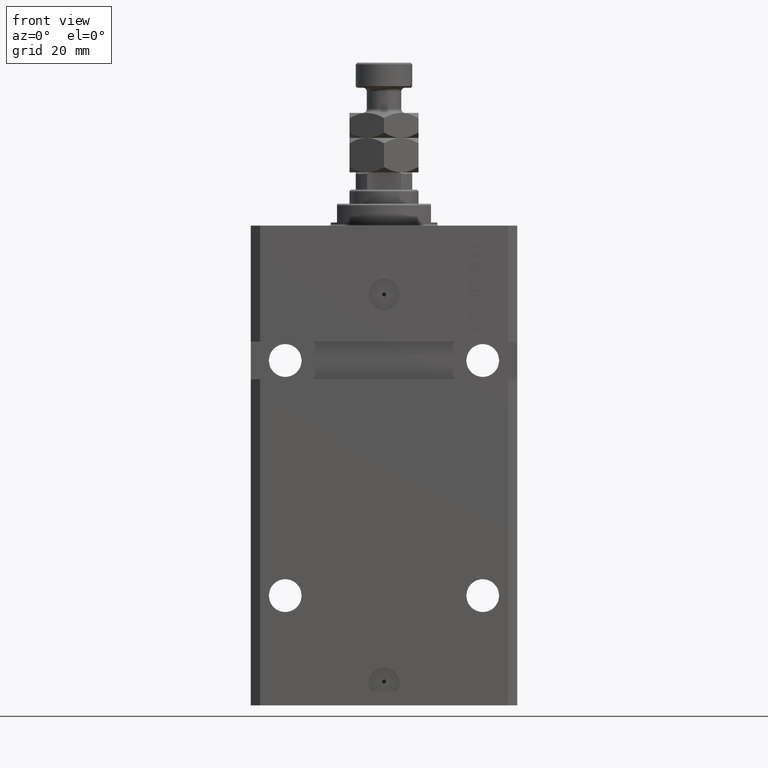
[diagram: clean part render]
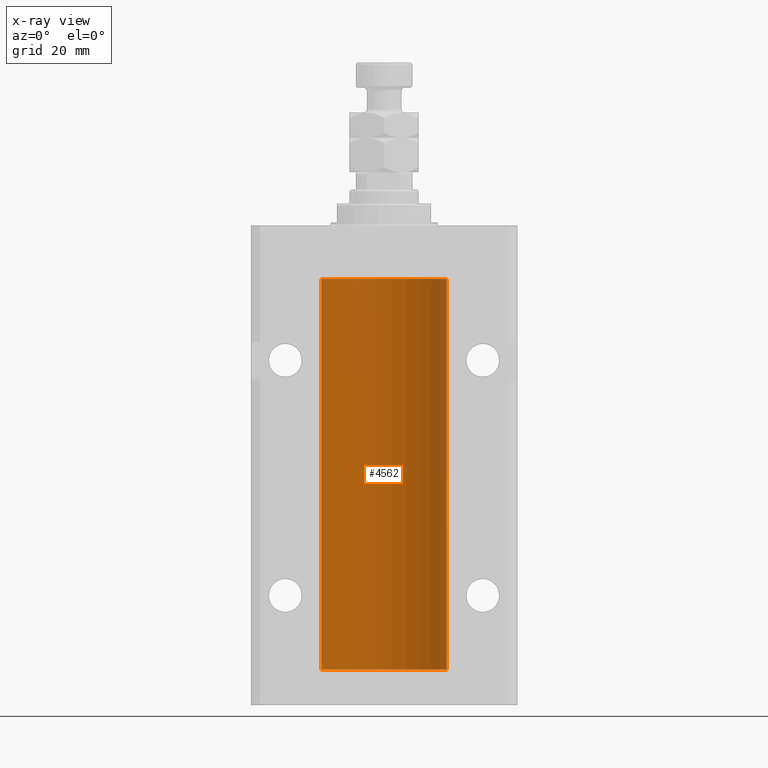
[diagram: x-ray — body ghosted, one internal face saturated and labeled with its STEP entity id]
A machine part, front view, then the same camera in x-ray: the body is ghosted and one INTERNAL B-rep face — a face not visible from any outside direction — is saturated and labeled: STEP entity #4562.
In plain terms, the highlighted cylindrical surface (partial cylindrical patch) has radius 20 mm, axis along (0, 0, 1).
Its self-contained STEP definition (entity closure, byte-faithful):
#610 = LINE ( 'NONE', #46173, #28416 ) ;
#773 = CARTESIAN_POINT ( 'NONE',  ( -20.00000000000000000, 0.1631688615953320320, -24.62499999999985434 ) ) ;
#874 = ORIENTED_EDGE ( 'NONE', *, *, #8172, .F. ) ;
#1271 = B_SPLINE_CURVE_WITH_KNOTS ( 'NONE', 3,
 ( #34008, #3576, #34253, #30234, #49593, #15134, #45831, #43064, #27208, #30994, #773, #46340 ),
 .UNSPECIFIED., .F., .F.,
 ( 4, 2, 2, 2, 2, 4 ),
 ( 5.848927291235706941E-19, 0.0002442693137305304075, 0.0004885386274610601645, 0.0009770772549221123059, 0.001465615882383164339, 0.001954154509844215938 ),
 .UNSPECIFIED. ) ;
#1500 = DIRECTION ( 'NONE',  ( -0.000000000000000000, -0.000000000000000000, 1.000000000000000000 ) ) ;
#2131 = VERTEX_POINT ( 'NONE', #33796 ) ;
#2314 = CARTESIAN_POINT ( 'NONE',  ( -20.00000000000000000, -1.756252550797319649E-14, -138.3749999999999716 ) ) ;
#3067 = CARTESIAN_POINT ( 'NONE',  ( -19.99253506710755346, 0.5587120480776690545, -139.3251162083025463 ) ) ;
#3576 = CARTESIAN_POINT ( 'NONE',  ( -19.99999999999999645, 0.08259581631026780002, -23.37500000000000000 ) ) ;
#4562 = ADVANCED_FACE ( 'NONE', ( #10789 ), #48522, .F. ) ;
#4648 = DIRECTION ( 'NONE',  ( -0.000000000000000000, -0.000000000000000000, 1.000000000000000000 ) ) ;
#5049 = LINE ( 'NONE', #35733, #36985 ) ;
#5670 = DIRECTION ( 'NONE',  ( 1.000000000000000000, 0.000000000000000000, 0.000000000000000000 ) ) ;
#5791 = ORIENTED_EDGE ( 'NONE', *, *, #15036, .T. ) ;
#6023 = DIRECTION ( 'NONE',  ( -0.000000000000000000, -0.000000000000000000, 1.000000000000000000 ) ) ;
#6099 = CARTESIAN_POINT ( 'NONE',  ( -19.99256581701871482, 0.5573276956901845880, -138.6734856577095059 ) ) ;
#8172 = EDGE_CURVE ( 'NONE', #40919, #8828, #45728, .T. ) ;
#8828 = VERTEX_POINT ( 'NONE', #17488 ) ;
#10284 = DIRECTION ( 'NONE',  ( 1.000000000000000000, 0.000000000000000000, 0.000000000000000000 ) ) ;
#10668 = EDGE_CURVE ( 'NONE', #35092, #47302, #610, .T. ) ;
#10789 = FACE_OUTER_BOUND ( 'NONE', #46677, .T. ) ;
#11881 = CARTESIAN_POINT ( 'NONE',  ( -20.00000000000000000, -2.867584836844214272E-15, -23.37500000000000000 ) ) ;
#13207 = EDGE_CURVE ( 'NONE', #30841, #44009, #30139, .T. ) ;
#13597 = CARTESIAN_POINT ( 'NONE',  ( -20.00000000000000000, 2.449293598294706513E-15, -141.5999999999999943 ) ) ;
#14252 = ORIENTED_EDGE ( 'NONE', *, *, #26614, .F. ) ;
#15036 = EDGE_CURVE ( 'NONE', #40919, #47302, #1271, .T. ) ;
#15134 = CARTESIAN_POINT ( 'NONE',  ( -19.99256581701871482, 0.5573276956902001311, -23.67348565770948809 ) ) ;
#17488 = CARTESIAN_POINT ( 'NONE',  ( -20.00000000000000000, 2.449293598294706513E-15, -17.00000000000000000 ) ) ;
#17771 = LINE ( 'NONE', #47957, #28037 ) ;
#18088 = CARTESIAN_POINT ( 'NONE',  ( 0.000000000000000000, 0.000000000000000000, -141.5999999999999943 ) ) ;
#18121 = AXIS2_PLACEMENT_3D ( 'NONE', #44999, #33171, #48519 ) ;
#19585 = CARTESIAN_POINT ( 'NONE',  ( 20.00000000000000000, 0.000000000000000000, -141.5999999999999943 ) ) ;
#20044 = CARTESIAN_POINT ( 'NONE',  ( 0.000000000000000000, 0.000000000000000000, -141.5999999999999943 ) ) ;
#20809 = DIRECTION ( 'NONE',  ( -0.000000000000000000, -0.000000000000000000, 1.000000000000000000 ) ) ;
#21116 = EDGE_CURVE ( 'NONE', #30841, #2131, #17771, .T. ) ;
#21454 = CARTESIAN_POINT ( 'NONE',  ( -19.99638934703457238, 0.3843678041337506568, -138.5004636297809952 ) ) ;
#21948 = CARTESIAN_POINT ( 'NONE',  ( -20.00000000000000000, 0.08259581631025542103, -138.3749999999999716 ) ) ;
#22534 = ORIENTED_EDGE ( 'NONE', *, *, #13207, .F. ) ;
#23335 = ORIENTED_EDGE ( 'NONE', *, *, #27179, .T. ) ;
#25468 = CARTESIAN_POINT ( 'NONE',  ( -19.99999999999999645, 0.1631688615953307553, -139.6249999999998010 ) ) ;
#26614 = EDGE_CURVE ( 'NONE', #44009, #27929, #5049, .T. ) ;
#27179 = EDGE_CURVE ( 'NONE', #35092, #27929, #36021, .T. ) ;
#27208 = CARTESIAN_POINT ( 'NONE',  ( -19.99253506710754991, 0.5587120480776751608, -24.32511620830248589 ) ) ;
#27264 = CARTESIAN_POINT ( 'NONE',  ( -20.00000000000000000, 2.449293598294706513E-15, -141.5999999999999943 ) ) ;
#27929 = VERTEX_POINT ( 'NONE', #41345 ) ;
#28037 = VECTOR ( 'NONE', #20809, 1000.000000000000000 ) ;
#28416 = VECTOR ( 'NONE', #4648, 1000.000000000000000 ) ;
#28971 = CARTESIAN_POINT ( 'NONE',  ( -19.99947377218718358, 0.1636439183262808073, -138.3912636400466170 ) ) ;
#29978 = CARTESIAN_POINT ( 'NONE',  ( -19.99023380173166231, 0.6249420416828387337, -138.8367079305639606 ) ) ;
#30139 = CIRCLE ( 'NONE', #36576, 20.00000000000000000 ) ;
#30234 = CARTESIAN_POINT ( 'NONE',  ( -19.99766197842594906, 0.3150331617867667688, -23.45402070102505476 ) ) ;
#30841 = VERTEX_POINT ( 'NONE', #19585 ) ;
#30994 = CARTESIAN_POINT ( 'NONE',  ( -19.99769349528941120, 0.3253804398728645242, -24.55855820727680339 ) ) ;
#33171 = DIRECTION ( 'NONE',  ( 0.000000000000000000, 0.000000000000000000, 1.000000000000000000 ) ) ;
#33260 = CARTESIAN_POINT ( 'NONE',  ( -20.00000000000010303, 3.580159282543646009E-13, -24.62500000000332889 ) ) ;
#33796 = CARTESIAN_POINT ( 'NONE',  ( 20.00000000000000000, 0.000000000000000000, -17.00000000000000000 ) ) ;
#33999 = CARTESIAN_POINT ( 'NONE',  ( -20.00000000000010303, 3.580159249456421507E-13, -139.6250000000033253 ) ) ;
#34008 = CARTESIAN_POINT ( 'NONE',  ( -20.00000000000000000, -2.867584836844214272E-15, -23.37500000000000000 ) ) ;
#34253 = CARTESIAN_POINT ( 'NONE',  ( -19.99947377218718714, 0.1636439183262877461, -23.39126364004656011 ) ) ;
#34919 = CARTESIAN_POINT ( 'NONE',  ( -20.00000000000000000, -1.756252550797319649E-14, -138.3749999999999716 ) ) ;
#35092 = VERTEX_POINT ( 'NONE', #34919 ) ;
#35733 = CARTESIAN_POINT ( 'NONE',  ( -20.00000000000000000, 2.449293598294706513E-15, -141.5999999999999943 ) ) ;
#35874 = DIRECTION ( 'NONE',  ( 0.000000000000000000, 0.000000000000000000, 1.000000000000000000 ) ) ;
#36021 = B_SPLINE_CURVE_WITH_KNOTS ( 'NONE', 3,
 ( #2314, #21948, #28971, #44587, #21454, #6099, #29978, #44327, #3067, #36788, #25468, #33999 ),
 .UNSPECIFIED., .F., .F.,
 ( 4, 2, 2, 2, 2, 4 ),
 ( 5.247116368830962784E-19, 0.0002442693137305545852, 0.0004885386274611086283, 0.0009770772549221576255, 0.001465615882383206840, 0.001954154509844256270 ),
 .UNSPECIFIED. ) ;
#36576 = AXIS2_PLACEMENT_3D ( 'NONE', #20044, #35874, #5670 ) ;
#36788 = CARTESIAN_POINT ( 'NONE',  ( -19.99769349528941120, 0.3253804398728610270, -139.5585582072767750 ) ) ;
#36985 = VECTOR ( 'NONE', #1500, 1000.000000000000000 ) ;
#39823 = CIRCLE ( 'NONE', #18121, 20.00000000000000000 ) ;
#40153 = ORIENTED_EDGE ( 'NONE', *, *, #21116, .T. ) ;
#40919 = VERTEX_POINT ( 'NONE', #11881 ) ;
#41345 = CARTESIAN_POINT ( 'NONE',  ( -20.00000000000010303, 3.580159249456421507E-13, -139.6250000000033253 ) ) ;
#42366 = EDGE_CURVE ( 'NONE', #2131, #8828, #39823, .T. ) ;
#42828 = VECTOR ( 'NONE', #48065, 1000.000000000000000 ) ;
#43064 = CARTESIAN_POINT ( 'NONE',  ( -19.99023018003212471, 0.6250578794725500931, -24.16284809704970371 ) ) ;
#44009 = VERTEX_POINT ( 'NONE', #27264 ) ;
#44327 = CARTESIAN_POINT ( 'NONE',  ( -19.99023018003212471, 0.6250578794725458742, -139.1628480970496753 ) ) ;
#44587 = CARTESIAN_POINT ( 'NONE',  ( -19.99766197842594195, 0.3150331617867615508, -138.4540207010250299 ) ) ;
#44999 = CARTESIAN_POINT ( 'NONE',  ( 0.000000000000000000, 0.000000000000000000, -17.00000000000000000 ) ) ;
#45728 = LINE ( 'NONE', #13597, #42828 ) ;
#45831 = CARTESIAN_POINT ( 'NONE',  ( -19.99023380173166231, 0.6249420416828462832, -23.83670793056396064 ) ) ;
#46173 = CARTESIAN_POINT ( 'NONE',  ( -20.00000000000000000, 2.449293598294706513E-15, -141.5999999999999943 ) ) ;
#46340 = CARTESIAN_POINT ( 'NONE',  ( -20.00000000000010303, 3.580159282543646009E-13, -24.62500000000332889 ) ) ;
#46677 = EDGE_LOOP ( 'NONE', ( #14252, #22534, #40153, #46784, #874, #5791, #47532, #23335 ) ) ;
#46784 = ORIENTED_EDGE ( 'NONE', *, *, #42366, .T. ) ;
#46860 = AXIS2_PLACEMENT_3D ( 'NONE', #18088, #6023, #10284 ) ;
#47302 = VERTEX_POINT ( 'NONE', #33260 ) ;
#47532 = ORIENTED_EDGE ( 'NONE', *, *, #10668, .F. ) ;
#47957 = CARTESIAN_POINT ( 'NONE',  ( 20.00000000000000000, 0.000000000000000000, -141.5999999999999943 ) ) ;
#48065 = DIRECTION ( 'NONE',  ( -0.000000000000000000, -0.000000000000000000, 1.000000000000000000 ) ) ;
#48519 = DIRECTION ( 'NONE',  ( 1.000000000000000000, 0.000000000000000000, 0.000000000000000000 ) ) ;
#48522 = CYLINDRICAL_SURFACE ( 'NONE', #46860, 20.00000000000000000 ) ;
#49593 = CARTESIAN_POINT ( 'NONE',  ( -19.99638934703457593, 0.3843678041337688644, -23.50046362978100944 ) ) ;